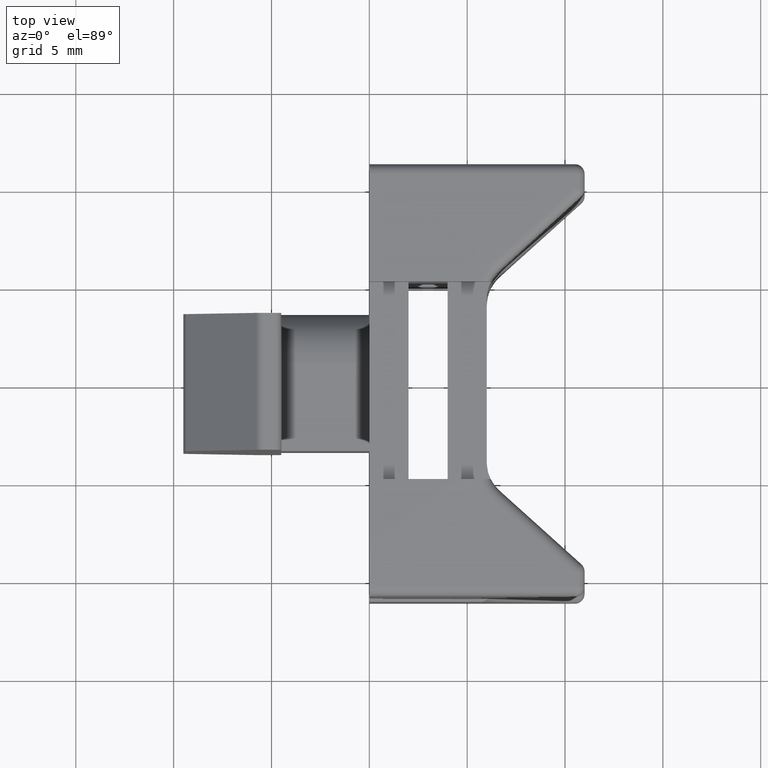
[diagram: clean part render]
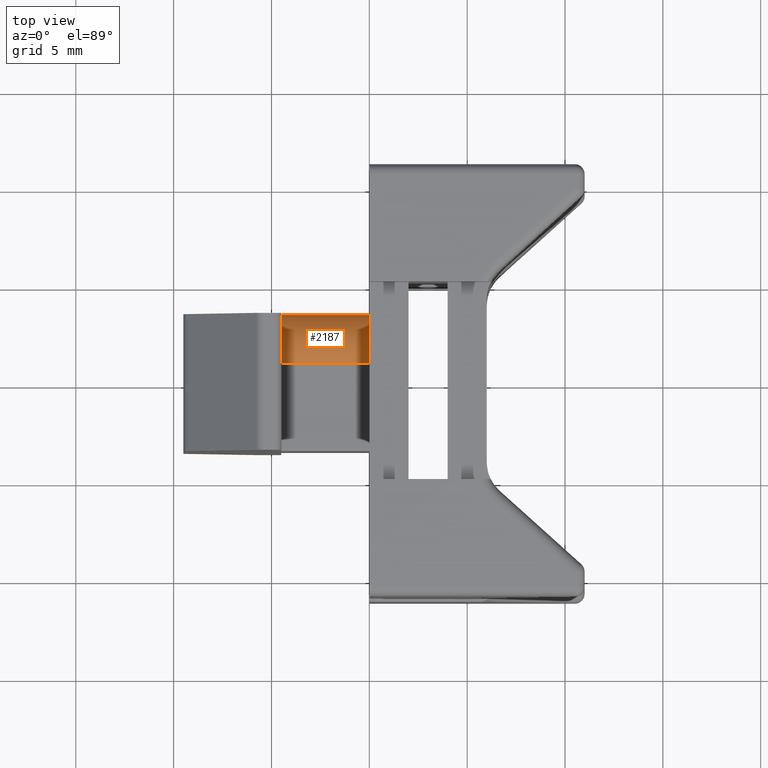
[diagram: same view with one face highlighted and labeled with its STEP entity id]
A machine part, top view. The second image highlights one B-rep face of the part: STEP entity #2187.
In plain terms, the highlighted cylindrical surface (partial cylindrical patch) has radius 2.5 mm, axis along (1, 0, 0).
Its self-contained STEP definition (entity closure, byte-faithful):
#263=LINE('',#3835,#465);
#264=LINE('',#3836,#466);
#465=VECTOR('',#3041,10.);
#466=VECTOR('',#3042,10.);
#539=CYLINDRICAL_SURFACE('',#2431,2.5);
#654=FACE_OUTER_BOUND('',#782,.T.);
#782=EDGE_LOOP('',(#1958,#1959,#1960,#1961));
#826=CIRCLE('',#2272,2.5);
#892=CIRCLE('',#2432,2.5);
#957=VERTEX_POINT('',#3312);
#958=VERTEX_POINT('',#3314);
#1068=VERTEX_POINT('',#3832);
#1069=VERTEX_POINT('',#3833);
#1166=EDGE_CURVE('',#958,#957,#826,.F.);
#1372=EDGE_CURVE('',#1068,#1069,#892,.F.);
#1373=EDGE_CURVE('',#1069,#958,#263,.T.);
#1374=EDGE_CURVE('',#957,#1068,#264,.T.);
#1958=ORIENTED_EDGE('',*,*,#1372,.T.);
#1959=ORIENTED_EDGE('',*,*,#1373,.T.);
#1960=ORIENTED_EDGE('',*,*,#1166,.T.);
#1961=ORIENTED_EDGE('',*,*,#1374,.T.);
#2187=ADVANCED_FACE('',(#654),#539,.T.);
#2272=AXIS2_PLACEMENT_3D('',#3315,#2591,#2592);
#2431=AXIS2_PLACEMENT_3D('',#3831,#3037,#3038);
#2432=AXIS2_PLACEMENT_3D('',#3834,#3039,#3040);
#2591=DIRECTION('center_axis',(1.,0.,0.));
#2592=DIRECTION('ref_axis',(0.,0.707106781186547,0.707106781186547));
#3037=DIRECTION('center_axis',(1.,0.,0.));
#3038=DIRECTION('ref_axis',(0.,0.707106781186547,0.707106781186547));
#3039=DIRECTION('center_axis',(-1.,0.,0.));
#3040=DIRECTION('ref_axis',(0.,0.707106781186547,0.707106781186547));
#3041=DIRECTION('',(1.,0.,0.));
#3042=DIRECTION('',(-1.,0.,0.));
#3312=CARTESIAN_POINT('',(0.,3.5,11.25));
#3314=CARTESIAN_POINT('',(0.,1.,13.75));
#3315=CARTESIAN_POINT('Origin',(0.,1.,11.25));
#3831=CARTESIAN_POINT('Origin',(-4.70208332312433,1.,11.25));
#3832=CARTESIAN_POINT('',(-4.5,3.5,11.25));
#3833=CARTESIAN_POINT('',(-4.5,1.,13.75));
#3834=CARTESIAN_POINT('Origin',(-4.5,1.,11.25));
#3835=CARTESIAN_POINT('',(-4.70208332312433,1.,13.75));
#3836=CARTESIAN_POINT('',(-4.70208332312433,3.5,11.25));